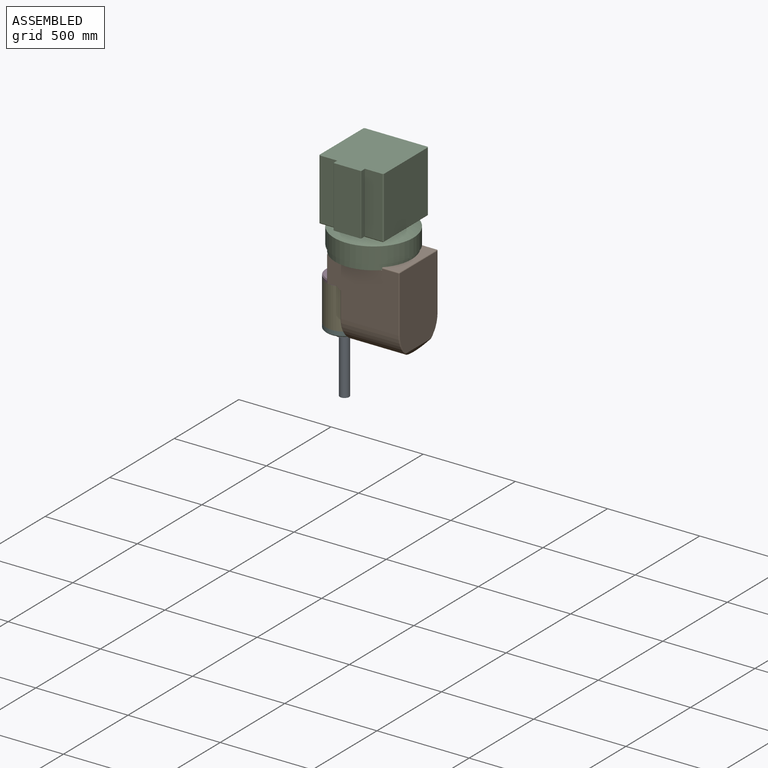
[diagram: assembled view]
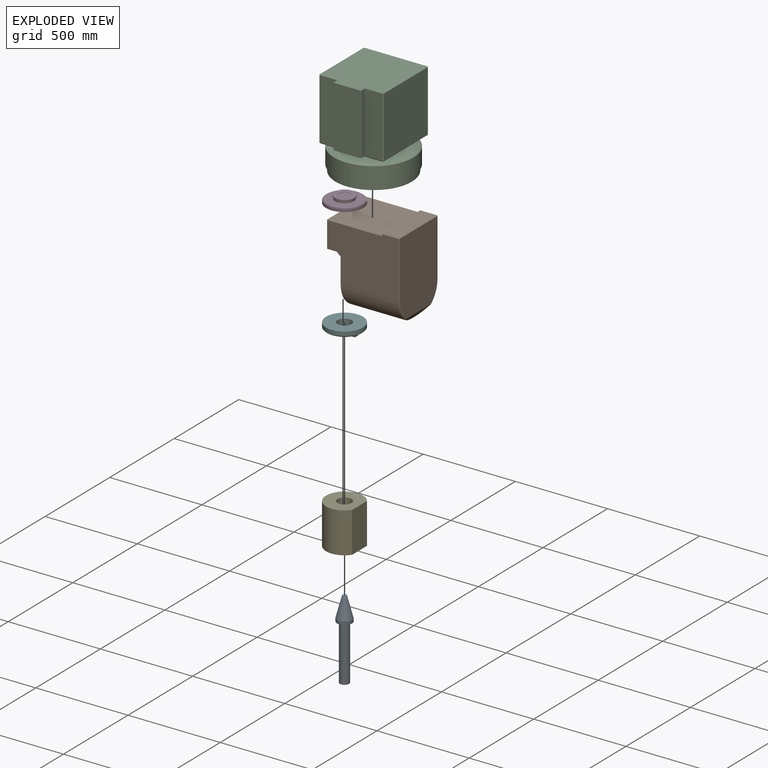
[diagram: exploded view]
GUIDED TOUR — MATED ASSEMBLY (Onshape document 7d806dec7221da7f1049d67c, AutoMate assembly 7d806dec7221da7f1049d67c_d2747893be9389fb7148f5d3_f6a2c4d3d82a6bc81b8f8425_default)

This assembly has 6 components, labeled P0..P5 below (a component is one placed occurrence of a part; the same part can appear more than once), held together by 5 mates. A mate is a constraint between two components; its type names the relative motion it leaves free:
  FASTENED — locks the two components together rigidly (no relative motion).
Axis/direction vectors are unit vectors and 'through' points are millimeter coordinates, both in the assembly's world frame.

MATES
  1. FASTENED "Fastened 2": P5 <-> P0, direction (0.000, 0.000, -1.000) through (117.07, 295.79, 282.63) mm
  2. FASTENED "Fastened 1": P5 <-> P4, direction (0.000, 0.000, 1.000) through (117.07, 295.79, 325.63) mm
  3. FASTENED "Fastened 5": P1 <-> P4, direction (-1.000, 0.000, 0.000) through (198.77, 295.79, 435.63) mm
  4. FASTENED "Fastened 4": P1 <-> P2, direction (0.000, 0.000, 1.000) through (275.23, 295.79, 717.82) mm
  5. FASTENED "Fastened 3": P4 <-> P3, direction (0.000, 0.000, 1.000) through (117.07, 295.79, 545.63) mm

ASSEMBLY ORDER
  1. P5 — the base component [order verified]
  2. P0 [order verified]
  3. P4 [order verified]
  4. P1 [order verified]
  5. P3 [order verified]
  6. P2 [order verified]
(P0 verified with a relaxed clearance tolerance: the source model stores slight part interference there.)
Order-tag legend:
  [order verified] — this step's position reverses a verified removal order: the component was checked to insert without passing through the ones already placed.

Of the 6 components, 5 carry the full construction recipe — the FeatureScript program that regenerates the part's solid from scratch; the rest are supplied as boundary geometry only.
Each toured component is shown spotlighted twice — in the assembled view, then in the exploded view, where a leader line traces a displaced component back to its assembled socket (saturated green if recipe-attached, orange if geometry-only; every other component desaturated gray) — followed by its recipe or geometry summary and the mates that hold it.
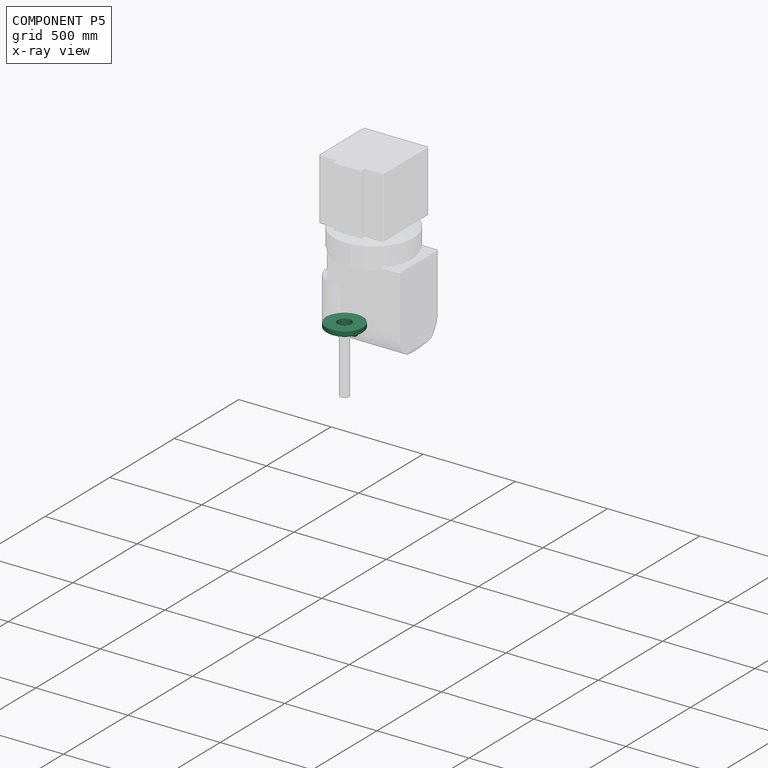
[diagram: component P5 — x-ray view]
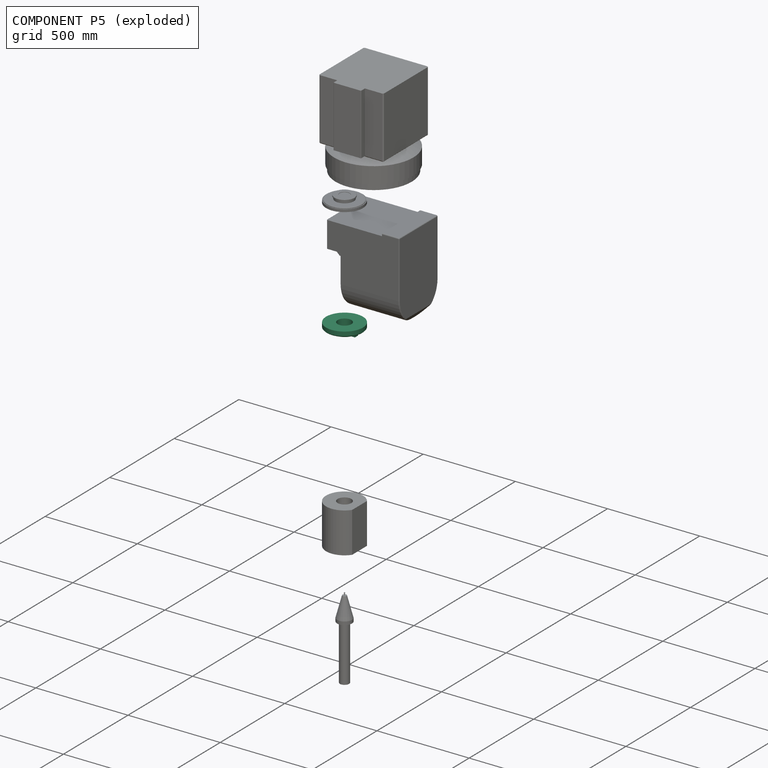
[diagram: component P5 — exploded]
COMPONENT P5 — recipe-attached (CADFS 00362085, mesh-verified: the recipe's output STEP matches this component's geometry to below the mesh-comparison resolution (tessellation chordal tolerance ~0.432 mm)).
Held by: FASTENED mate "Fastened 2" to P0; FASTENED mate "Fastened 1" to P4.
Construction recipe (FeatureScript — the CAD program that rebuilds this solid; sketch coordinates are in the units given by the * unit suffixes, e.g. mm):

FeatureScript 1511;
import(path : "onshape/std/geometry.fs", version : "1511.0");
import(path : "onshape/std/common.fs", version : "1511.0");
const mm = millimeter;
const VERTEX = EntityType.VERTEX;
const EDGE = EntityType.EDGE;
const FACE = EntityType.FACE;
const BODY = EntityType.BODY;
function v(x, y){return vector(x, y);}
function OD(order){return orderDisambiguation(order);}
function OSD(set){return originalSetDisambiguation(set);}
function TD(topology){return topologyDisambiguation(topology);}
function TDD(query){return trueDependencyDisambiguation(query);}
function sQuery(a, b, c) {return sketchEntityQuery(a, b, c);}

annotation { "Feature Type Name" : "Feature", "Feature Type Description" : "" }
export const myFeature = defineFeature(function(context is Context, id is Id, definition is map)
    precondition{}
    {
        {
            var Q0;
            Q0=qCreatedBy(makeId("Top.planeOp"),FACE);
            var sketch = newSketch(context, id + "F0", { "sketchPlane" : qUnion([Q0])});
            skCircle(sketch, "E0", {"center": v(0, 0) * mm, "radius": 100 * mm});
            skSolve(sketch);
        }
        {
            var Q0;
            Q0=makeQuery(id+"F0.imprint","IMPRINT",FACE,{"disambiguationData":[TD([[makeQuery(id+"F0.imprint","IMPRINT",EDGE,{"derivedFrom":sQuery(id+"F0.wireOp",EDGE,"E0")}),1.0]])]});
            extrude(context, id + "F1", {"entities" : qUnion([Q0]), "depth" : 28 * mm});
        }
        {
            var Q0;
            Q0=makeQuery(id+"F1.opExtrude","CAP_FACE",FACE,{"disambiguationData":[OSD([sQuery(id+"F0.wireOp",EDGE,"E0")])],"isStart":true});
            var sketch = newSketch(context, id + "F2", { "sketchPlane" : qUnion([Q0])});
            skCircle(sketch, "E1", {"center": v(0, 0) * mm, "radius": 65 * mm});
            skCircle(sketch, "E2", {"center": v(0, 0) * mm, "radius": 37.5 * mm});
            skPoint(sketch, "E3.middle", {"position": v(-47.86, 0) * mm});
            skPoint(sketch, "E4.middle", {"position": v(50, 0) * mm});
            skPoint(sketch, "E3.right.end.orphan", {"position": v(-60.36, 12.5) * mm});
            skPoint(sketch, "E3.bottom.end.orphan", {"position": v(-60.36, -12.5) * mm});
            skPoint(sketch, "E3.left.end.orphan", {"position": v(-35.36, 12.5) * mm});
            skPoint(sketch, "E3.left.start.orphan", {"position": v(-35.36, -12.5) * mm});
            skPoint(sketch, "E4.bottom.end.orphan", {"position": v(36.21, -12.5) * mm});
            skPoint(sketch, "E4.left.start.orphan", {"position": v(63.79, -12.5) * mm});
            skPoint(sketch, "E4.top.end.orphan", {"position": v(36.21, 12.5) * mm});
            skPoint(sketch, "E4.top.start.orphan", {"position": v(63.79, 12.5) * mm});
            skSolve(sketch);
        }
        {
            var Q0;
            Q0=makeQuery(id+"F2.imprint","IMPRINT",FACE,{"disambiguationData":[TD([[makeQuery(id+"F2.imprint","IMPRINT",EDGE,{"derivedFrom":sQuery(id+"F2.wireOp",EDGE,"E1")}),1.0]])]});
            extrude(context, id + "F3", {"entities" : qUnion([Q0]), "operationType" : NewBodyOperationType.ADD, "depth" : 15 * mm});
        }
        {
            var Q0;
            Q0=makeQuery(id+"F3.opExtrude","CAP_FACE",FACE,{"disambiguationData":[OSD([sQuery(id+"F2.wireOp",EDGE,"E1"),sQuery(id+"F2.wireOp",EDGE,"E2")])],"isStart":false});
            var sketch = newSketch(context, id + "F4", { "sketchPlane" : qUnion([Q0])});
            skLineSegment(sketch, "E5.bottom", {"start": v(65, -12.5) * mm, "end": v(40, -12.5) * mm});
            skLineSegment(sketch, "E5.top", {"start": v(65, 12.5) * mm, "end": v(40, 12.5) * mm});
            skLineSegment(sketch, "E5.left", {"start": v(65, -12.5) * mm, "end": v(65, 12.5) * mm});
            skLineSegment(sketch, "E5.right", {"start": v(40, -12.5) * mm, "end": v(40, 12.5) * mm});
            skPoint(sketch, "E5.middle", {"position": v(52.5, 0) * mm});
            skLineSegment(sketch, "E6.bottom", {"start": v(-40, -12.5) * mm, "end": v(-65, -12.5) * mm});
            skLineSegment(sketch, "E6.top", {"start": v(-40, 12.5) * mm, "end": v(-65, 12.5) * mm});
            skLineSegment(sketch, "E6.left", {"start": v(-40, -12.5) * mm, "end": v(-40, 12.5) * mm});
            skLineSegment(sketch, "E6.right", {"start": v(-65, -12.5) * mm, "end": v(-65, 12.5) * mm});
            skPoint(sketch, "E6.middle", {"position": v(-52.5, 0) * mm});
            skSolve(sketch);
        }
        {
            var Q0;
            {var subQ0=sQuery(id+"F4.wireOp",EDGE,"E6.left");Q0=makeQuery(id+"F4.imprint","IMPRINT",FACE,{"disambiguationData":[TD([[makeQuery(id+"F4.imprint","IMPRINT",EDGE,{"derivedFrom":subQ0}),1.0]])]});}
            var Q1;
            {var subQ4=sQuery(id+"F4.wireOp",EDGE,"E5.right");Q1=makeQuery(id+"F4.imprint","IMPRINT",FACE,{"disambiguationData":[TD([[makeQuery(id+"F4.imprint","IMPRINT",EDGE,{"derivedFrom":subQ4}),-1.0]])]});}
            var Q2;
            {var subQ0=sQuery(id+"F4.wireOp",EDGE,"E5.left");var subQ1=sQuery(id+"F4.wireOp",EDGE,"E5.top");var subQ2=makeQuery(id+"F4.imprint","INTERSECT",VERTEX,{"derivedFrom":[subQ1,subQ0]});Q2=makeQuery(id+"F4.imprint","IMPRINT",FACE,{"disambiguationData":[TD([[makeQuery(id+"F4.imprint","IMPRINT",EDGE,{"disambiguationData":[TD([[subQ2,-1.0]])],"derivedFrom":subQ1}),1.0]])]});}
            var Q3;
            {var subQ0=sQuery(id+"F4.wireOp",EDGE,"E5.left");var subQ1=sQuery(id+"F4.wireOp",EDGE,"E5.bottom");var subQ2=makeQuery(id+"F4.imprint","INTERSECT",VERTEX,{"derivedFrom":[subQ1,subQ0]});Q3=makeQuery(id+"F4.imprint","IMPRINT",FACE,{"disambiguationData":[TD([[makeQuery(id+"F4.imprint","IMPRINT",EDGE,{"disambiguationData":[TD([[subQ2,-1.0]])],"derivedFrom":subQ1}),-1.0]])]});}
            var Q4;
            {var subQ0=sQuery(id+"F4.wireOp",EDGE,"E6.right");var subQ1=sQuery(id+"F4.wireOp",EDGE,"E6.top");var subQ2=makeQuery(id+"F4.imprint","INTERSECT",VERTEX,{"derivedFrom":[subQ1,subQ0]});Q4=makeQuery(id+"F4.imprint","IMPRINT",FACE,{"disambiguationData":[TD([[makeQuery(id+"F4.imprint","IMPRINT",EDGE,{"disambiguationData":[TD([[subQ2,1.0]])],"derivedFrom":subQ1}),1.0]])]});}
            var Q5;
            {var subQ0=sQuery(id+"F4.wireOp",EDGE,"E6.right");var subQ1=sQuery(id+"F4.wireOp",EDGE,"E6.bottom");var subQ2=makeQuery(id+"F4.imprint","INTERSECT",VERTEX,{"derivedFrom":[subQ1,subQ0]});Q5=makeQuery(id+"F4.imprint","IMPRINT",FACE,{"disambiguationData":[TD([[makeQuery(id+"F4.imprint","IMPRINT",EDGE,{"disambiguationData":[TD([[subQ2,1.0]])],"derivedFrom":subQ1}),-1.0]])]});}
            extrude(context, id + "F5", {"entities" : qUnion([Q0, Q1, Q2, Q3, Q4, Q5]), "operationType" : NewBodyOperationType.ADD, "depth" : 10 * mm});
        }
        {
            var Q0;
            Q0=makeQuery(id+"F5.opExtrude","CAP_FACE",FACE,{"disambiguationData":[OSD([sQuery(id+"F4.wireOp",EDGE,"E6.bottom"),sQuery(id+"F4.wireOp",EDGE,"E6.top"),sQuery(id+"F4.wireOp",EDGE,"E6.left"),sQuery(id+"F4.wireOp",EDGE,"E6.right")])],"isStart":false});
            var sketch = newSketch(context, id + "F6", { "sketchPlane" : qUnion([Q0])});
            skCircle(sketch, "E7", {"center": v(-52.5, 0) * mm, "radius": 6 * mm});
            skCircle(sketch, "E8", {"center": v(52.5, 0) * mm, "radius": 6 * mm});
            skSolve(sketch);
        }
        {
            var Q0;
            Q0=makeQuery(id+"F6.imprint","IMPRINT",FACE,{"disambiguationData":[TD([[makeQuery(id+"F6.imprint","IMPRINT",EDGE,{"derivedFrom":sQuery(id+"F6.wireOp",EDGE,"E8")}),1.0]])]});
            var Q1;
            Q1=makeQuery(id+"F6.imprint","IMPRINT",FACE,{"disambiguationData":[TD([[makeQuery(id+"F6.imprint","IMPRINT",EDGE,{"derivedFrom":sQuery(id+"F6.wireOp",EDGE,"E7")}),1.0]])]});
            extrude(context, id + "F7", {"entities" : qUnion([Q0, Q1]), "operationType" : NewBodyOperationType.REMOVE, "oppositeDirection" : true, "depth" : 2 * mm});
        }
        {
            var Q0;
            Q0=makeQuery(id+"F3.boolean.opBoolean","SPLIT",FACE,{"disambiguationData":[TD([makeQuery(id+"F3.opExtrude","SWEPT_FACE",FACE,{"disambiguationData":[OSD([sQuery(id+"F2.wireOp",EDGE,"E2")])]})])],"derivedFrom":makeQuery(id+"F1.opExtrude","CAP_FACE",FACE,{"disambiguationData":[OSD([sQuery(id+"F0.wireOp",EDGE,"E0")])],"isStart":true})});
            extrude(context, id + "F8", {"entities" : qUnion([Q0]), "operationType" : NewBodyOperationType.REMOVE, "oppositeDirection" : true, "depth" : 50 * mm});
        }
        {
            var Q0;
            Q0=makeQuery(id+"F1.opExtrude","CAP_EDGE",EDGE,{"disambiguationData":[OSD([sQuery(id+"F0.wireOp",EDGE,"E0")])],"isStart":true});
            chamfer(context, id + "F9", {"entities" : qUnion([Q0]), "width" : 5 * mm, "tangentPropagation" : true});
        }
    });
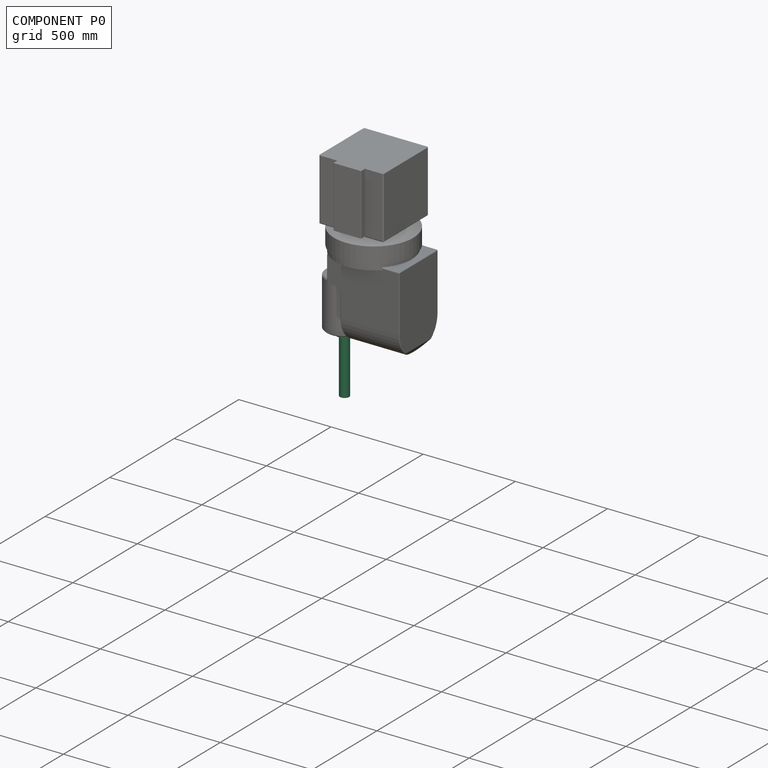
[diagram: component P0 — assembled]
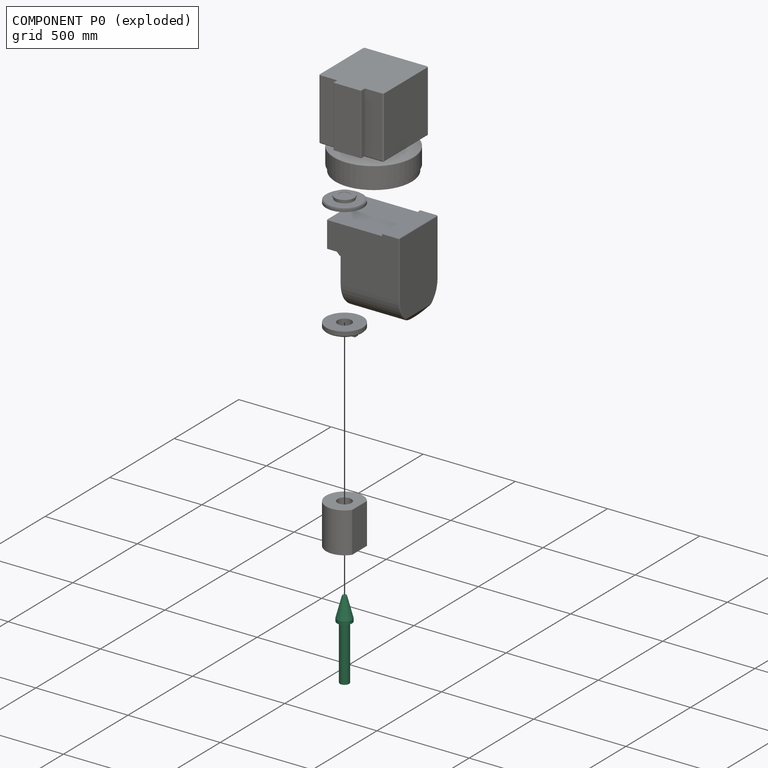
[diagram: component P0 — exploded]
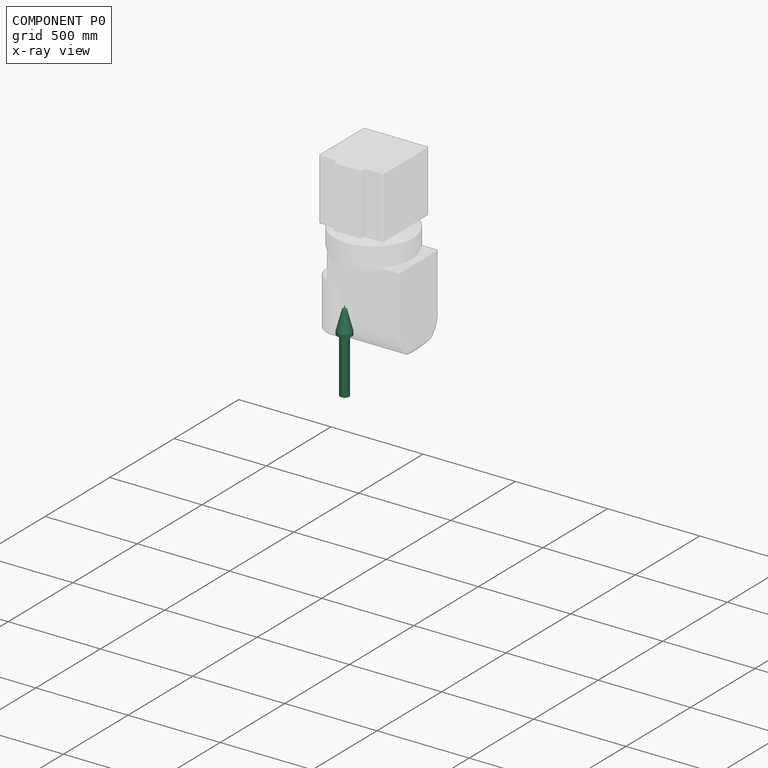
[diagram: component P0 — x-ray view]
COMPONENT P0 — recipe-attached (CADFS 00362087, mesh-verified: the recipe's output STEP matches this component's geometry to below the mesh-comparison resolution (tessellation chordal tolerance ~0.685 mm)).
Held by: FASTENED mate "Fastened 2" to P5.
Construction recipe (FeatureScript — the CAD program that rebuilds this solid; sketch coordinates are in the units given by the * unit suffixes, e.g. mm):

FeatureScript 1511;
import(path : "onshape/std/geometry.fs", version : "1511.0");
import(path : "onshape/std/common.fs", version : "1511.0");
const mm = millimeter;
const VERTEX = EntityType.VERTEX;
const EDGE = EntityType.EDGE;
const FACE = EntityType.FACE;
const BODY = EntityType.BODY;
function v(x, y){return vector(x, y);}
function OD(order){return orderDisambiguation(order);}
function OSD(set){return originalSetDisambiguation(set);}
function TD(topology){return topologyDisambiguation(topology);}
function TDD(query){return trueDependencyDisambiguation(query);}
function sQuery(a, b, c) {return sketchEntityQuery(a, b, c);}

annotation { "Feature Type Name" : "Feature", "Feature Type Description" : "" }
export const myFeature = defineFeature(function(context is Context, id is Id, definition is map)
    precondition{}
    {
        {
            var Q0;
            Q0=qCreatedBy(makeId("Front.planeOp"),FACE);
            var sketch = newSketch(context, id + "F0", { "sketchPlane" : qUnion([Q0])});
            skLineSegment(sketch, "E0", {"start": v(0, -215.17) * mm, "end": v(25, -215.17) * mm});
            skLineSegment(sketch, "E1", {"start": v(25, -215.17) * mm, "end": v(25, 84.83) * mm});
            skLineSegment(sketch, "E2", {"start": v(25, 84.83) * mm, "end": v(40.34, 84.83) * mm});
            skLineSegment(sketch, "E3", {"start": v(0, 212.9) * mm, "end": v(0, -215.17) * mm});
            skPoint(sketch, "E4.orphan", {"position": v(2.47, 236.47) * mm});
            skPoint(sketch, "E5.end.orphan", {"position": v(4.76, 236.47) * mm});
            skPoint(sketch, "E6.end.orphan", {"position": v(7.06, 236.47) * mm});
            skPoint(sketch, "E7.end.orphan", {"position": v(4.76, 212.9) * mm});
            skLineSegment(sketch, "E8", {"start": v(1.81, 212.9) * mm, "end": v(11.1, 212.9) * mm});
            skLineSegment(sketch, "E9", {"start": v(40.34, 102.43) * mm, "end": v(11.1, 212.9) * mm});
            skLineSegment(sketch, "E10", {"start": v(0, 227.17) * mm, "end": v(0, 212.9) * mm});
            skLineSegment(sketch, "E11", {"start": v(0, 227.17) * mm, "end": v(2.26, 227.17) * mm});
            skLineSegment(sketch, "E12", {"start": v(2.26, 227.17) * mm, "end": v(3.44, 224.95) * mm});
            skLineSegment(sketch, "E13", {"start": v(3.44, 224.95) * mm, "end": v(3.44, 222.87) * mm});
            skLineSegment(sketch, "E14", {"start": v(3.44, 222.87) * mm, "end": v(1.81, 222.87) * mm});
            skLineSegment(sketch, "E15", {"start": v(1.81, 222.87) * mm, "end": v(1.81, 212.9) * mm});
            skLineSegment(sketch, "E16", {"start": v(40.34, 84.83) * mm, "end": v(40.34, 102.43) * mm});
            skSolve(sketch);
        }
        {
            var Q0;
            Q0=makeQuery(id+"F0.imprint","IMPRINT",FACE,{"disambiguationData":[TD([[makeQuery(id+"F0.imprint","IMPRINT",EDGE,{"derivedFrom":sQuery(id+"F0.wireOp",EDGE,"E0")}),1.0]])]});
            var Q1;
            Q1=sQuery(id+"F0.wireOp",EDGE,"E3");
            revolve(context, id + "F1", {"entities" : qUnion([Q0]), "axis" : qUnion([Q1]), "revolveType" : RevolveType.FULL});
        }
    });
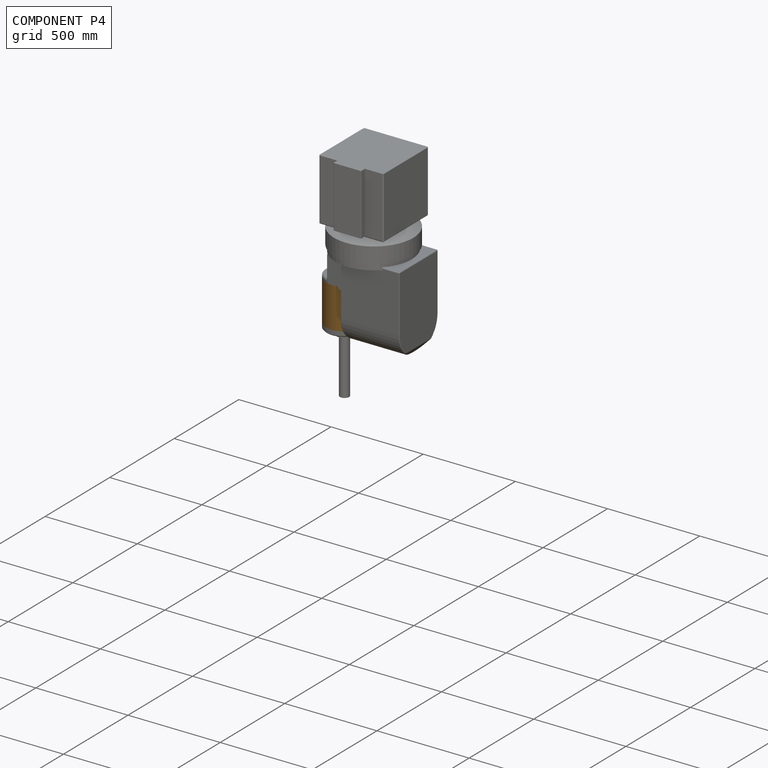
[diagram: component P4 — assembled]
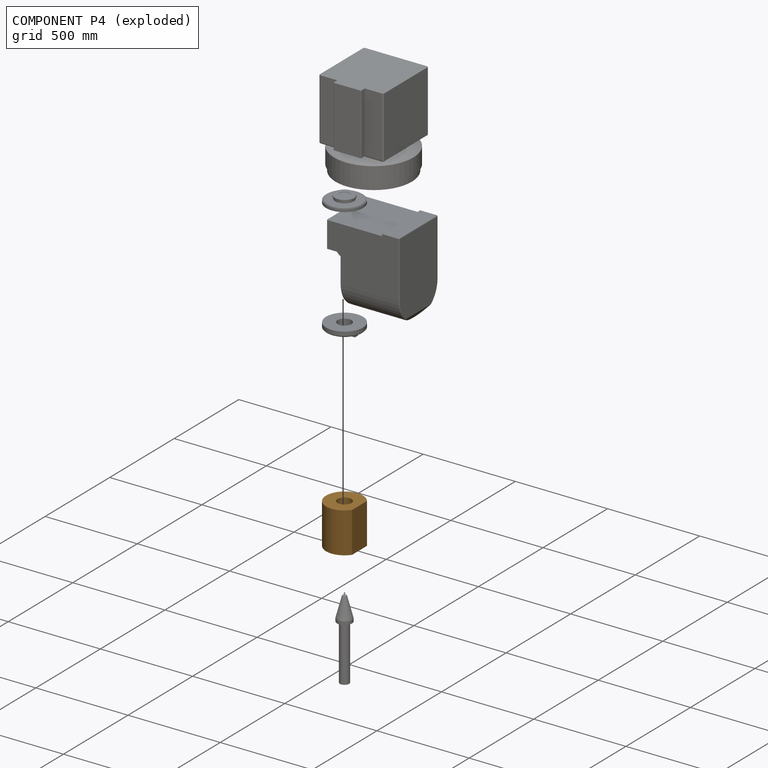
[diagram: component P4 — exploded]
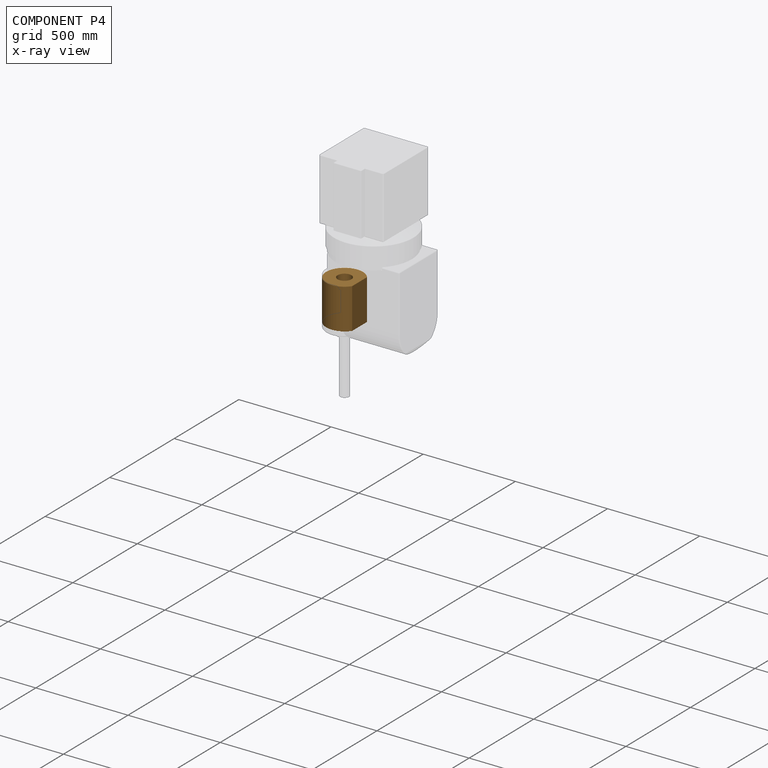
[diagram: component P4 — x-ray view]
COMPONENT P4 — geometry summary (no construction recipe available for this part):
  bounding box: 220.0 x 200.0 x 181.7 mm
  B-rep topology: 1 solid, 5 faces, 18 edges
  volume: 5623963 mm^3 (70% of its bounding box)
  symmetry: 2-fold rotationally symmetric about the x axis; mirror-symmetric across its y mid-plane, z mid-plane
Held by: FASTENED mate "Fastened 1" to P5; FASTENED mate "Fastened 5" to P1; FASTENED mate "Fastened 3" to P3.
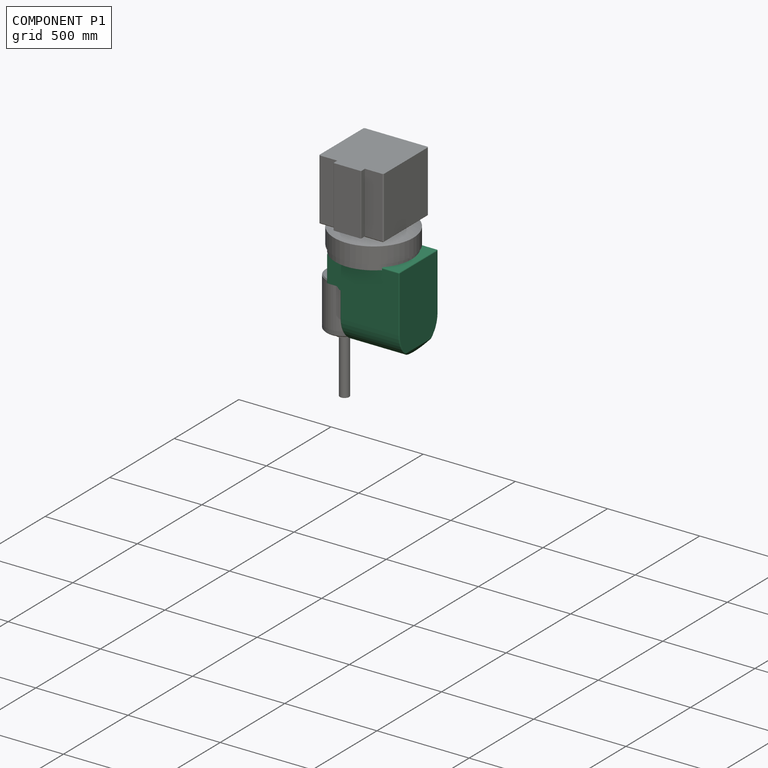
[diagram: component P1 — assembled]
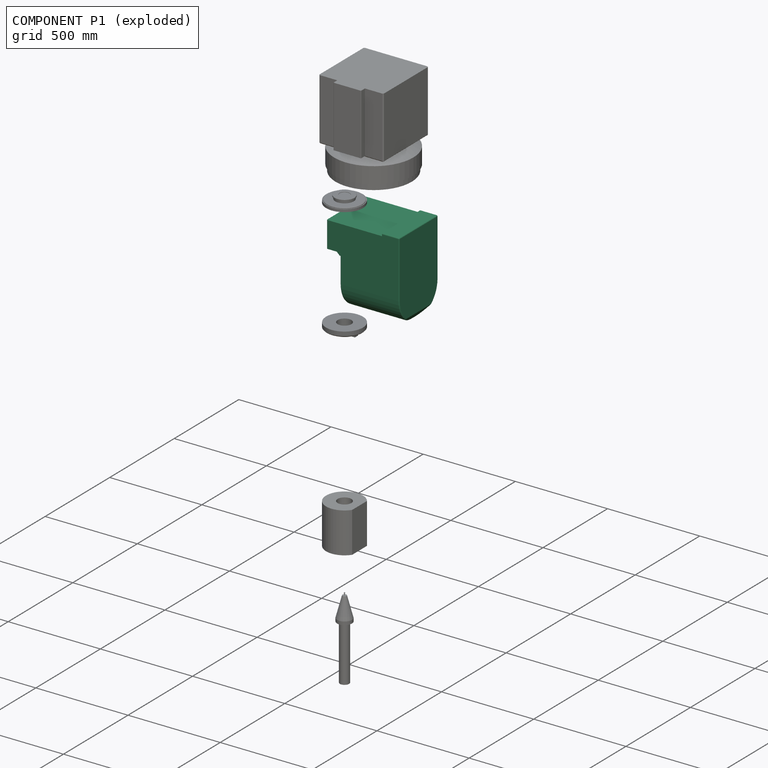
[diagram: component P1 — exploded]
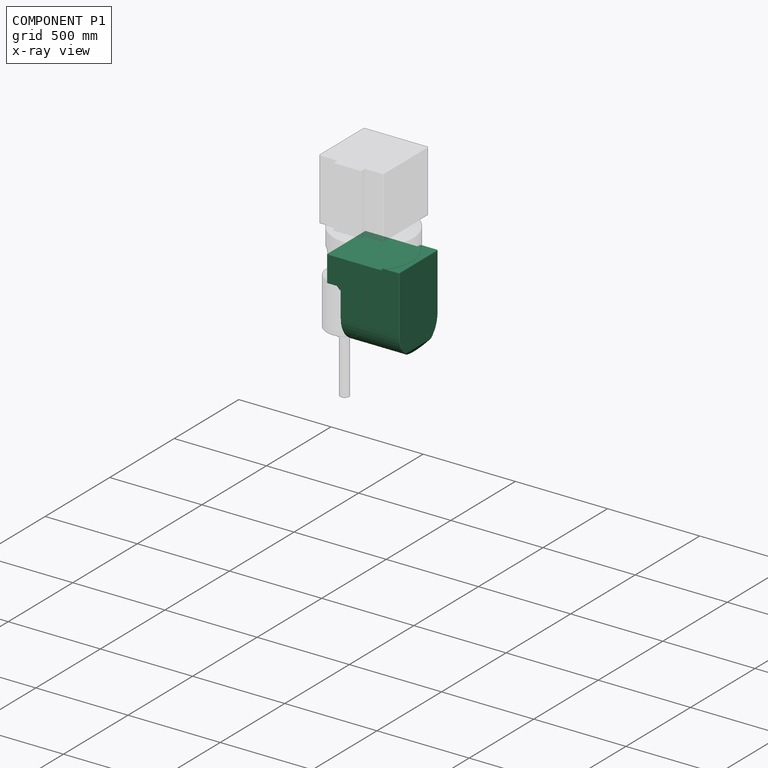
[diagram: component P1 — x-ray view]
COMPONENT P1 — recipe-attached (CADFS 00362090, mesh-verified: the recipe's output STEP matches this component's geometry to below the mesh-comparison resolution (tessellation chordal tolerance ~1 mm)).
Held by: FASTENED mate "Fastened 5" to P4; FASTENED mate "Fastened 4" to P2.
Construction recipe (FeatureScript — the CAD program that rebuilds this solid; sketch coordinates are in the units given by the * unit suffixes, e.g. mm):

FeatureScript 1511;
import(path : "onshape/std/geometry.fs", version : "1511.0");
import(path : "onshape/std/common.fs", version : "1511.0");
const mm = millimeter;
const VERTEX = EntityType.VERTEX;
const EDGE = EntityType.EDGE;
const FACE = EntityType.FACE;
const BODY = EntityType.BODY;
function v(x, y){return vector(x, y);}
function OD(order){return orderDisambiguation(order);}
function OSD(set){return originalSetDisambiguation(set);}
function TD(topology){return topologyDisambiguation(topology);}
function TDD(query){return trueDependencyDisambiguation(query);}
function sQuery(a, b, c) {return sketchEntityQuery(a, b, c);}

annotation { "Feature Type Name" : "Feature", "Feature Type Description" : "" }
export const myFeature = defineFeature(function(context is Context, id is Id, definition is map)
    precondition{}
    {
        {
            var Q0;
            Q0=qCreatedBy(makeId("Front.planeOp"),FACE);
            var sketch = newSketch(context, id + "F0", { "sketchPlane" : qUnion([Q0])});
            skLineSegment(sketch, "E0", {"start": v(-209.31, 94.65) * mm, "end": v(90.62, 94.65) * mm});
            skLineSegment(sketch, "E1", {"start": v(90.62, 94.65) * mm, "end": v(90.62, 74.54) * mm});
            skLineSegment(sketch, "E2", {"start": v(90.62, 74.54) * mm, "end": v(99.04, 67) * mm});
            skLineSegment(sketch, "E3", {"start": v(99.04, 67) * mm, "end": v(125.16, 67) * mm});
            skLineSegment(sketch, "E4", {"start": v(125.16, 67) * mm, "end": v(125.16, -341.57) * mm});
            skLineSegment(sketch, "E5", {"start": v(90.62, 94.65) * mm, "end": v(90.62, 108.43) * mm});
            skLineSegment(sketch, "E6", {"start": v(90.62, 108.43) * mm, "end": v(184.21, 108.43) * mm});
            skLineSegment(sketch, "E7", {"start": v(184.21, 108.43) * mm, "end": v(184.21, -306.92) * mm});
            skLineSegment(sketch, "E8", {"start": v(-135.79, -341.57) * mm, "end": v(234.39, -341.57) * mm});
            skLineSegment(sketch, "E9", {"start": v(159.12, -341.57) * mm, "end": v(184.21, -306.92) * mm});
            skLineSegment(sketch, "E10", {"start": v(-135.79, -341.57) * mm, "end": v(-135.79, -61.83) * mm});
            skLineSegment(sketch, "E11", {"start": v(-135.79, -61.83) * mm, "end": v(-139.43, -61.83) * mm});
            skLineSegment(sketch, "E12", {"start": v(-154.47, -46.76) * mm, "end": v(-139.43, -61.83) * mm});
            skPoint(sketch, "E12.startSnap0", {"position": v(-154.47, -61.83) * mm});
            skLineSegment(sketch, "E13", {"start": v(-154.47, -46.76) * mm, "end": v(-209.31, -46.76) * mm});
            skLineSegment(sketch, "E14", {"start": v(-209.31, 94.65) * mm, "end": v(-209.31, -46.76) * mm});
            skPoint(sketch, "E15.end.orphan", {"position": v(-173.15, 258.04) * mm});
            skPoint(sketch, "E16.orphan", {"position": v(-209.31, 108.43) * mm});
            skPoint(sketch, "E17.orphan", {"position": v(90.62, 132.04) * mm});
            skPoint(sketch, "E18.orphan", {"position": v(-173.15, -61.83) * mm});
            skSolve(sketch);
        }
        {
            var Q0;
            Q0=makeQuery(id+"F0.imprint","IMPRINT",FACE,{"disambiguationData":[TD([[makeQuery(id+"F0.imprint","IMPRINT",EDGE,{"derivedFrom":sQuery(id+"F0.wireOp",EDGE,"E0")}),-1.0]])]});
            var Q1;
            Q1=makeQuery(id+"F0.imprint","IMPRINT",FACE,{"disambiguationData":[TD([[makeQuery(id+"F0.imprint","IMPRINT",EDGE,{"derivedFrom":sQuery(id+"F0.wireOp",EDGE,"E1")}),1.0]])]});
            extrude(context, id + "F1", {"entities" : qUnion([Q0, Q1]), "depth" : 300 * mm});
        }
        {
            var Q0;
            Q0=makeQuery(id+"F1.opExtrude","SWEPT_EDGE",EDGE,{"disambiguationData":[OSD([sQuery(id+"F0.wireOp",EDGE,"E6"),sQuery(id+"F0.wireOp",EDGE,"E7")])]});
            var Q1;
            Q1=makeQuery(id+"F1.opExtrude","CAP_EDGE",EDGE,{"disambiguationData":[OSD([sQuery(id+"F0.wireOp",EDGE,"E7")])],"isStart":false});
            var Q2;
            Q2=makeQuery(id+"F1.opExtrude","CAP_EDGE",EDGE,{"disambiguationData":[OSD([sQuery(id+"F0.wireOp",EDGE,"E7")])],"isStart":true});
            var Q3;
            Q3=makeQuery(id+"F1.opExtrude","CAP_EDGE",EDGE,{"disambiguationData":[OSD([sQuery(id+"F0.wireOp",EDGE,"E14")])],"isStart":false});
            var Q4;
            Q4=makeQuery(id+"F1.opExtrude","CAP_EDGE",EDGE,{"disambiguationData":[OSD([sQuery(id+"F0.wireOp",EDGE,"E14")])],"isStart":true});
            fillet(context, id + "F2", {"entities" : qUnion([Q0, Q1, Q2, Q3, Q4]), "radius" : 5 * mm, "tangentPropagation" : true, "allowEdgeOverflow" : false});
        }
        {
            var Q0;
            Q0=makeQuery(id+"F1.opExtrude","CAP_EDGE",EDGE,{"disambiguationData":[OSD([sQuery(id+"F0.wireOp",EDGE,"E8")])],"isStart":false});
            var Q1;
            Q1=makeQuery(id+"F1.opExtrude","CAP_EDGE",EDGE,{"disambiguationData":[OSD([sQuery(id+"F0.wireOp",EDGE,"E8")])],"isStart":true});
            fillet(context, id + "F3", {"entities" : qUnion([Q0, Q1]), "radius" : 140 * mm, "tangentPropagation" : true, "allowEdgeOverflow" : false});
        }
        {
            var Q0;
            Q0=makeQuery(id+"F3.opFillet","BLEND_EDGE",EDGE,{"blendedFrom":[makeQuery(id+"F1.opExtrude","CAP_EDGE",EDGE,{"disambiguationData":[OSD([sQuery(id+"F0.wireOp",EDGE,"E8")])],"isStart":false}),makeQuery(id+"F1.opExtrude","SWEPT_FACE",FACE,{"disambiguationData":[OSD([sQuery(id+"F0.wireOp",EDGE,"E7")])]})],"blendedInto":[makeQuery(id+"F1.opExtrude","SWEPT_FACE",FACE,{"disambiguationData":[OSD([sQuery(id+"F0.wireOp",EDGE,"E7")])]})]});
            var Q1;
            Q1=makeQuery(id+"F3.opFillet","BLEND_EDGE",EDGE,{"blendedFrom":[makeQuery(id+"F1.opExtrude","CAP_EDGE",EDGE,{"disambiguationData":[OSD([sQuery(id+"F0.wireOp",EDGE,"E8")])],"isStart":false}),makeQuery(id+"F1.opExtrude","SWEPT_FACE",FACE,{"disambiguationData":[OSD([sQuery(id+"F0.wireOp",EDGE,"E9")])]})],"blendedInto":[makeQuery(id+"F1.opExtrude","SWEPT_FACE",FACE,{"disambiguationData":[OSD([sQuery(id+"F0.wireOp",EDGE,"E9")])]})]});
            var Q2;
            Q2=makeQuery(id+"F3.opFillet","BLEND_EDGE",EDGE,{"blendedFrom":[makeQuery(id+"F1.opExtrude","CAP_EDGE",EDGE,{"disambiguationData":[OSD([sQuery(id+"F0.wireOp",EDGE,"E8")])],"isStart":true}),makeQuery(id+"F1.opExtrude","SWEPT_FACE",FACE,{"disambiguationData":[OSD([sQuery(id+"F0.wireOp",EDGE,"E9")])]})],"blendedInto":[makeQuery(id+"F1.opExtrude","SWEPT_FACE",FACE,{"disambiguationData":[OSD([sQuery(id+"F0.wireOp",EDGE,"E9")])]})]});
            var Q3;
            Q3=makeQuery(id+"F1.opExtrude","SWEPT_EDGE",EDGE,{"disambiguationData":[OSD([sQuery(id+"F0.wireOp",EDGE,"E8"),sQuery(id+"F0.wireOp",EDGE,"E9")])]});
            var Q4;
            Q4=makeQuery(id+"F3.opFillet","BLEND_EDGE",EDGE,{"blendedFrom":[makeQuery(id+"F1.opExtrude","CAP_EDGE",EDGE,{"disambiguationData":[OSD([sQuery(id+"F0.wireOp",EDGE,"E8")])],"isStart":true}),makeQuery(id+"F1.opExtrude","SWEPT_FACE",FACE,{"disambiguationData":[OSD([sQuery(id+"F0.wireOp",EDGE,"E7")])]})],"blendedInto":[makeQuery(id+"F1.opExtrude","SWEPT_FACE",FACE,{"disambiguationData":[OSD([sQuery(id+"F0.wireOp",EDGE,"E7")])]})]});
            var Q5;
            Q5=makeQuery(id+"F3.opFillet","BLEND_EDGE",EDGE,{"blendedFrom":[makeQuery(id+"F1.opExtrude","CAP_EDGE",EDGE,{"disambiguationData":[OSD([sQuery(id+"F0.wireOp",EDGE,"E8")])],"isStart":true}),makeQuery(id+"F1.opExtrude","SWEPT_FACE",FACE,{"disambiguationData":[OSD([sQuery(id+"F0.wireOp",EDGE,"E10")])]})],"blendedInto":[makeQuery(id+"F1.opExtrude","SWEPT_FACE",FACE,{"disambiguationData":[OSD([sQuery(id+"F0.wireOp",EDGE,"E10")])]})]});
            var Q6;
            Q6=makeQuery(id+"F3.opFillet","BLEND_EDGE",EDGE,{"blendedFrom":[makeQuery(id+"F1.opExtrude","CAP_EDGE",EDGE,{"disambiguationData":[OSD([sQuery(id+"F0.wireOp",EDGE,"E8")])],"isStart":false}),makeQuery(id+"F1.opExtrude","SWEPT_FACE",FACE,{"disambiguationData":[OSD([sQuery(id+"F0.wireOp",EDGE,"E10")])]})],"blendedInto":[makeQuery(id+"F1.opExtrude","SWEPT_FACE",FACE,{"disambiguationData":[OSD([sQuery(id+"F0.wireOp",EDGE,"E10")])]})]});
            var Q7;
            Q7=makeQuery(id+"F1.opExtrude","SWEPT_EDGE",EDGE,{"disambiguationData":[OSD([sQuery(id+"F0.wireOp",EDGE,"E8"),sQuery(id+"F0.wireOp",EDGE,"E10")])]});
            fillet(context, id + "F4", {"entities" : qUnion([Q0, Q1, Q2, Q3, Q4, Q5, Q6, Q7]), "radius" : 5 * mm, "tangentPropagation" : true, "allowEdgeOverflow" : false});
        }
        {
            var Q0;
            Q0=makeQuery(id+"F1.opExtrude","CAP_EDGE",EDGE,{"disambiguationData":[OSD([sQuery(id+"F0.wireOp",EDGE,"E6")])],"isStart":false});
            var Q1;
            Q1=makeQuery(id+"F1.opExtrude","CAP_EDGE",EDGE,{"disambiguationData":[OSD([sQuery(id+"F0.wireOp",EDGE,"E6")])],"isStart":true});
            fillet(context, id + "F5", {"entities" : qUnion([Q0, Q1]), "radius" : 5 * mm, "tangentPropagation" : true, "allowEdgeOverflow" : false});
        }
        {
            var Q0;
            Q0=makeQuery(id+"F1.opExtrude","SWEPT_FACE",FACE,{"disambiguationData":[OSD([sQuery(id+"F0.wireOp",EDGE,"E14")])]});
            var sketch = newSketch(context, id + "F6", { "sketchPlane" : qUnion([Q0])});
            skArc(sketch, "E19", {"start": v(295, -42.72) * mm, "mid": v(150, 13.2) * mm, "end": v(5, -42.72) * mm});
            skPoint(sketch, "E19.centerSnap0", {"position": v(150, -46.76) * mm});
            skLineSegment(sketch, "E20", {"start": v(5, -46.76) * mm, "end": v(5, -61.87) * mm});
            skLineSegment(sketch, "E21", {"start": v(5, -61.87) * mm, "end": v(295, -61.87) * mm});
            skLineSegment(sketch, "E22", {"start": v(295, -61.87) * mm, "end": v(295, -46.76) * mm});
            skLineSegment(sketch, "E23", {"start": v(295, -46.76) * mm, "end": v(295, -42.72) * mm});
            skLineSegment(sketch, "E24", {"start": v(5, -46.76) * mm, "end": v(5, -42.72) * mm});
            skSolve(sketch);
        }
        {
            var Q0;
            Q0=makeQuery(id+"F6.imprint","IMPRINT",FACE,{"disambiguationData":[TD([[makeQuery(id+"F6.imprint","IMPRINT",EDGE,{"derivedFrom":sQuery(id+"F6.wireOp",EDGE,"E19")}),1.0]])]});
            var Q1;
            Q1=makeQuery(id+"F6.imprint","IMPRINT",FACE,{"disambiguationData":[TD([[makeQuery(id+"F6.imprint","IMPRINT",EDGE,{"derivedFrom":sQuery(id+"F6.wireOp",EDGE,"E20")}),1.0]])]});
            extrude(context, id + "F7", {"entities" : qUnion([Q0, Q1]), "operationType" : NewBodyOperationType.REMOVE, "oppositeDirection" : true, "depth" : 75 * mm});
        }
    });
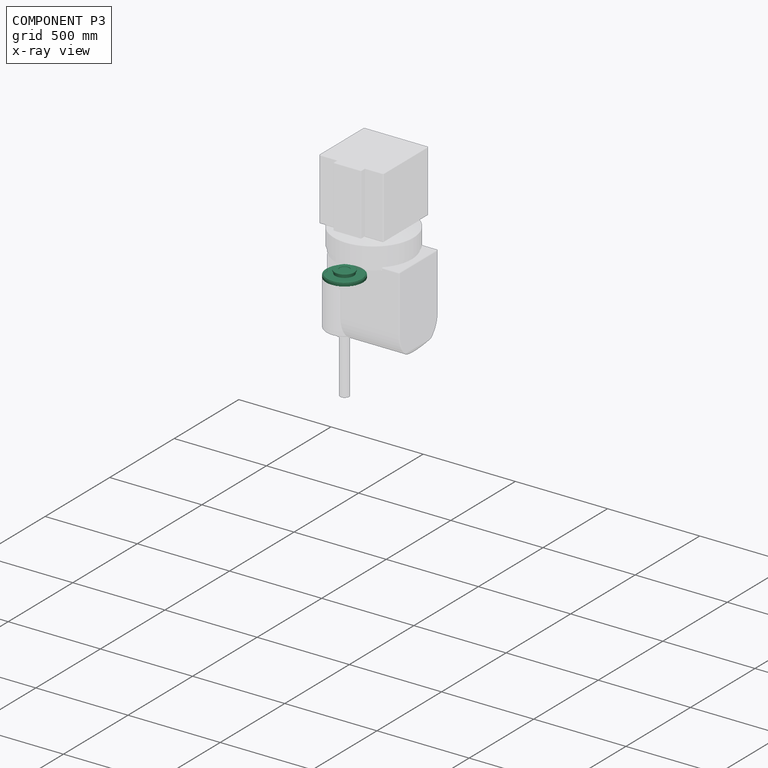
[diagram: component P3 — x-ray view]
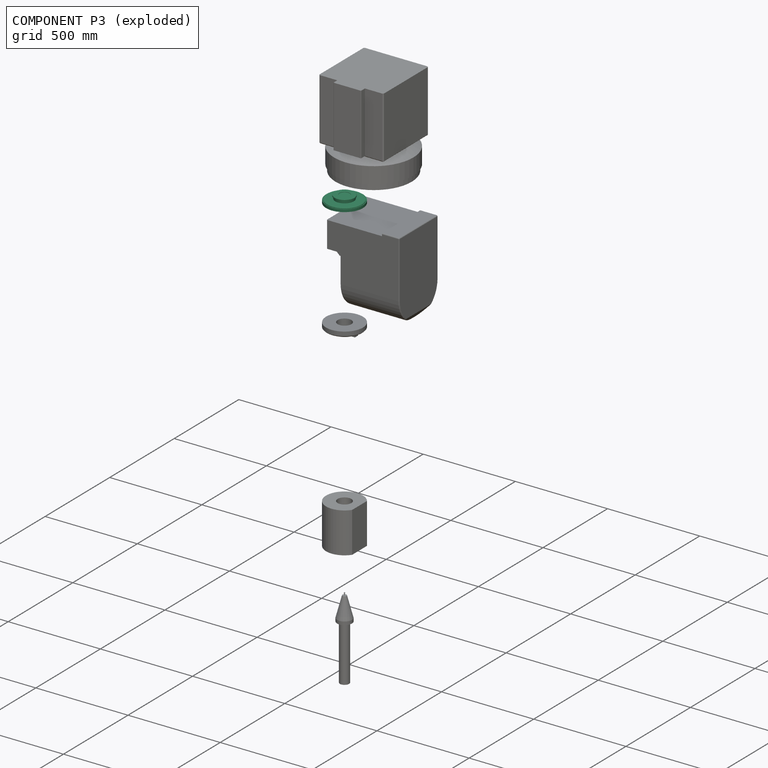
[diagram: component P3 — exploded]
COMPONENT P3 — recipe-attached (CADFS 00362088, mesh-verified: the recipe's output STEP matches this component's geometry to below the mesh-comparison resolution (tessellation chordal tolerance ~0.428 mm)).
Held by: FASTENED mate "Fastened 3" to P4.
Construction recipe (FeatureScript — the CAD program that rebuilds this solid; sketch coordinates are in the units given by the * unit suffixes, e.g. mm):

FeatureScript 1511;
import(path : "onshape/std/geometry.fs", version : "1511.0");
import(path : "onshape/std/common.fs", version : "1511.0");
const mm = millimeter;
const VERTEX = EntityType.VERTEX;
const EDGE = EntityType.EDGE;
const FACE = EntityType.FACE;
const BODY = EntityType.BODY;
function v(x, y){return vector(x, y);}
function OD(order){return orderDisambiguation(order);}
function OSD(set){return originalSetDisambiguation(set);}
function TD(topology){return topologyDisambiguation(topology);}
function TDD(query){return trueDependencyDisambiguation(query);}
function sQuery(a, b, c) {return sketchEntityQuery(a, b, c);}

annotation { "Feature Type Name" : "Feature", "Feature Type Description" : "" }
export const myFeature = defineFeature(function(context is Context, id is Id, definition is map)
    precondition{}
    {
        {
            var Q0;
            Q0=qCreatedBy(makeId("Front.planeOp"),FACE);
            var sketch = newSketch(context, id + "F0", { "sketchPlane" : qUnion([Q0])});
            skLineSegment(sketch, "E0", {"start": v(0, 0) * mm, "end": v(100, 0) * mm});
            skLineSegment(sketch, "E1", {"start": v(100, 0) * mm, "end": v(100, 14.3) * mm});
            skLineSegment(sketch, "E2", {"start": v(100, 14.3) * mm, "end": v(0, 14.3) * mm});
            skLineSegment(sketch, "E3", {"start": v(96.2, 14.3) * mm, "end": v(96.2, 17.26) * mm});
            skLineSegment(sketch, "E4", {"start": v(96.2, 17.26) * mm, "end": v(0, 17.26) * mm});
            skLineSegment(sketch, "E5", {"start": v(96.2, 17.26) * mm, "end": v(92.51, 19.6) * mm});
            skLineSegment(sketch, "E6", {"start": v(92.51, 19.6) * mm, "end": v(0, 19.6) * mm});
            skLineSegment(sketch, "E7", {"start": v(50, 19.6) * mm, "end": v(50, 33.54) * mm});
            skPoint(sketch, "E7.startSnap0", {"position": v(50, 14.3) * mm});
            skLineSegment(sketch, "E8", {"start": v(50, 33.54) * mm, "end": v(0, 33.54) * mm});
            skLineSegment(sketch, "E9", {"start": v(0, 38.54) * mm, "end": v(54.58, 38.54) * mm});
            skLineSegment(sketch, "E10", {"start": v(54.58, 38.54) * mm, "end": v(54.58, 33.54) * mm});
            skLineSegment(sketch, "E11", {"start": v(54.58, 33.54) * mm, "end": v(50, 33.54) * mm});
            skLineSegment(sketch, "E12", {"start": v(54.58, 38.54) * mm, "end": v(52.7, 40) * mm});
            skLineSegment(sketch, "E13", {"start": v(52.7, 40) * mm, "end": v(0, 40) * mm});
            skLineSegment(sketch, "E14", {"start": v(0, 40) * mm, "end": v(0, 0) * mm});
            skPoint(sketch, "E15.orphan", {"position": v(0, 46.6) * mm});
            skSolve(sketch);
        }
        {
            var Q0;
            {var subQ1=sQuery(id+"F0.wireOp",EDGE,"E8");Q0=makeQuery(id+"F0.imprint","IMPRINT",FACE,{"disambiguationData":[TD([[makeQuery(id+"F0.imprint","IMPRINT",EDGE,{"derivedFrom":subQ1}),-1.0]])]});}
            var Q1;
            {var subQ0=sQuery(id+"F0.wireOp",EDGE,"E9");Q1=makeQuery(id+"F0.imprint","IMPRINT",FACE,{"disambiguationData":[TD([[makeQuery(id+"F0.imprint","IMPRINT",EDGE,{"derivedFrom":subQ0}),1.0]])]});}
            var Q2;
            {var subQ3=sQuery(id+"F0.wireOp",EDGE,"E7");Q2=makeQuery(id+"F0.imprint","IMPRINT",FACE,{"disambiguationData":[TD([[makeQuery(id+"F0.imprint","IMPRINT",EDGE,{"derivedFrom":subQ3}),1.0]])]});}
            var Q3;
            {var subQ3=sQuery(id+"F0.wireOp",EDGE,"E3");Q3=makeQuery(id+"F0.imprint","IMPRINT",FACE,{"disambiguationData":[TD([[makeQuery(id+"F0.imprint","IMPRINT",EDGE,{"derivedFrom":subQ3}),1.0]])]});}
            var Q4;
            {var subQ4=sQuery(id+"F0.wireOp",EDGE,"E4");Q4=makeQuery(id+"F0.imprint","IMPRINT",FACE,{"disambiguationData":[TD([[makeQuery(id+"F0.imprint","IMPRINT",EDGE,{"derivedFrom":subQ4}),-1.0]])]});}
            var Q5;
            {var subQ5=sQuery(id+"F0.wireOp",EDGE,"E0");Q5=makeQuery(id+"F0.imprint","IMPRINT",FACE,{"disambiguationData":[TD([[makeQuery(id+"F0.imprint","IMPRINT",EDGE,{"derivedFrom":subQ5}),1.0]])]});}
            var Q6;
            Q6=sQuery(id+"F0.wireOp",EDGE,"E14");
            revolve(context, id + "F1", {"entities" : qUnion([Q0, Q1, Q2, Q3, Q4, Q5]), "axis" : qUnion([Q6]), "revolveType" : RevolveType.FULL});
        }
        {
            var Q0;
            Q0=makeQuery(id+"F1.opRevolve","SWEPT_FACE",FACE,{"disambiguationData":[OSD([sQuery(id+"F0.wireOp",EDGE,"E13")])]});
            var sketch = newSketch(context, id + "F2", { "sketchPlane" : qUnion([Q0])});
            skCircle(sketch, "E16", {"center": v(0, 0) * mm, "radius": 27.5 * mm});
            skSolve(sketch);
        }
        {
            var Q0;
            Q0=makeQuery(id+"F2.imprint","IMPRINT",FACE,{"disambiguationData":[TD([[makeQuery(id+"F2.imprint","IMPRINT",EDGE,{"derivedFrom":sQuery(id+"F2.wireOp",EDGE,"E16")}),1.0]])]});
            extrude(context, id + "F3", {"entities" : qUnion([Q0]), "operationType" : NewBodyOperationType.REMOVE, "oppositeDirection" : true, "depth" : 2 * mm});
        }
    });
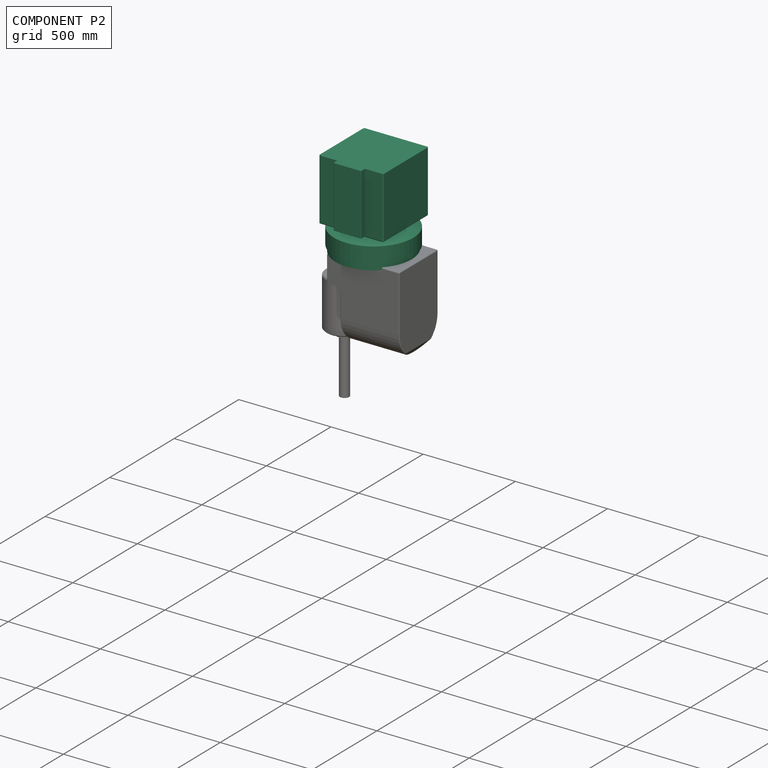
[diagram: component P2 — assembled]
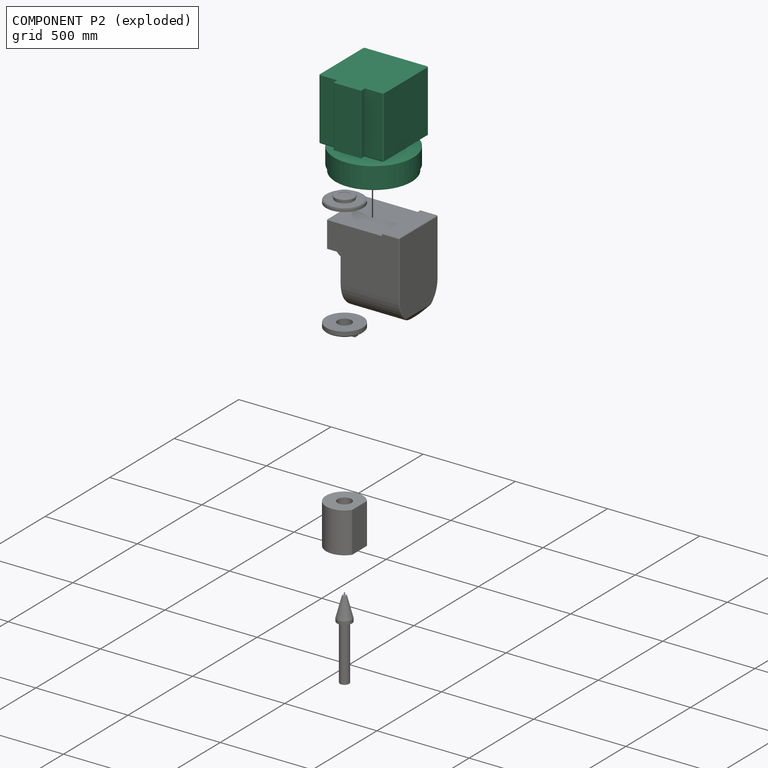
[diagram: component P2 — exploded]
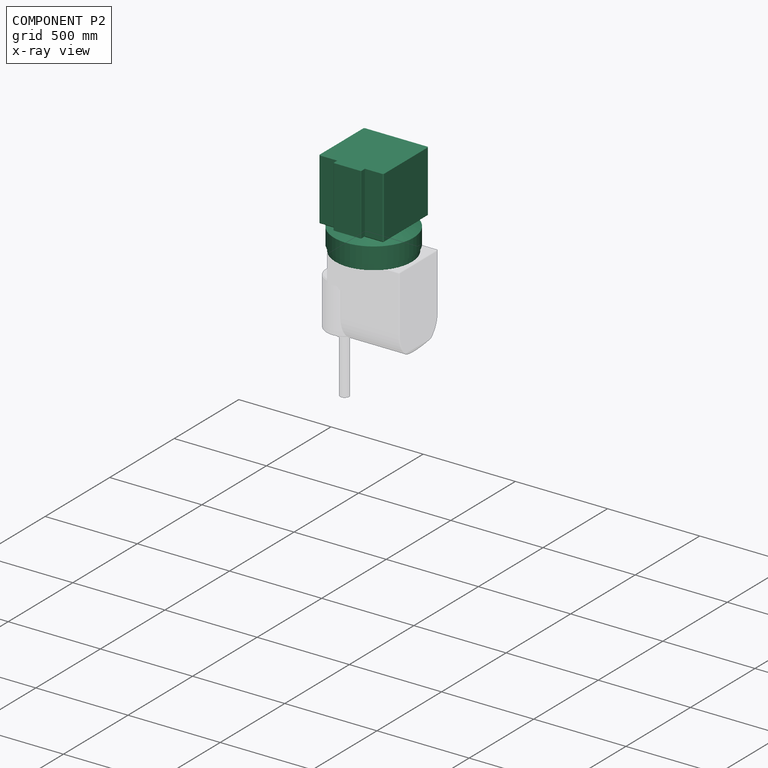
[diagram: component P2 — x-ray view]
COMPONENT P2 — recipe-attached (CADFS 00362089, mesh-verified: the recipe's output STEP matches this component's geometry to below the mesh-comparison resolution (tessellation chordal tolerance ~1.17 mm)).
Held by: FASTENED mate "Fastened 4" to P1.
Construction recipe (FeatureScript — the CAD program that rebuilds this solid; sketch coordinates are in the units given by the * unit suffixes, e.g. mm):

FeatureScript 1511;
import(path : "onshape/std/geometry.fs", version : "1511.0");
import(path : "onshape/std/common.fs", version : "1511.0");
const mm = millimeter;
const VERTEX = EntityType.VERTEX;
const EDGE = EntityType.EDGE;
const FACE = EntityType.FACE;
const BODY = EntityType.BODY;
function v(x, y){return vector(x, y);}
function OD(order){return orderDisambiguation(order);}
function OSD(set){return originalSetDisambiguation(set);}
function TD(topology){return topologyDisambiguation(topology);}
function TDD(query){return trueDependencyDisambiguation(query);}
function sQuery(a, b, c) {return sketchEntityQuery(a, b, c);}

annotation { "Feature Type Name" : "Feature", "Feature Type Description" : "" }
export const myFeature = defineFeature(function(context is Context, id is Id, definition is map)
    precondition{}
    {
        {
            var Q0;
            Q0=qCreatedBy(makeId("Front.planeOp"),FACE);
            var sketch = newSketch(context, id + "F0", { "sketchPlane" : qUnion([Q0])});
            skLineSegment(sketch, "E0", {"start": v(-166.1, -120.82) * mm, "end": v(41.05, -120.82) * mm});
            skPoint(sketch, "E0.startSnap0", {"position": v(224.91, -120.82) * mm});
            skLineSegment(sketch, "E1", {"start": v(-166.1, -89.02) * mm, "end": v(-166.1, -120.82) * mm});
            skLineSegment(sketch, "E2", {"start": v(-166.1, -89.02) * mm, "end": v(41.05, -89.02) * mm});
            skLineSegment(sketch, "E3", {"start": v(-166.1, -89.02) * mm, "end": v(-173.95, -89.02) * mm});
            skLineSegment(sketch, "E4", {"start": v(-173.95, -89.02) * mm, "end": v(-173.95, 0) * mm});
            skLineSegment(sketch, "E5", {"start": v(-173.95, 0) * mm, "end": v(41.05, 0) * mm});
            skLineSegment(sketch, "E6", {"start": v(-173.95, -34.06) * mm, "end": v(41.05, -34.06) * mm});
            skLineSegment(sketch, "E7", {"start": v(-173.95, 0) * mm, "end": v(-91.55, 42.05) * mm});
            skLineSegment(sketch, "E8", {"start": v(-91.55, 42.05) * mm, "end": v(41.05, 42.05) * mm});
            skLineSegment(sketch, "E9", {"start": v(41.05, 171.5) * mm, "end": v(41.05, -194.52) * mm});
            skPoint(sketch, "E10.orphan", {"position": v(249.25, 0) * mm});
            skPoint(sketch, "E11.trimOffspring.end.orphan", {"position": v(249.25, -34.06) * mm});
            skPoint(sketch, "E12.orphan", {"position": v(249.25, -89.02) * mm});
            skPoint(sketch, "E13.start.orphan", {"position": v(224.91, -97.66) * mm});
            skPoint(sketch, "E14.end.orphan", {"position": v(224.91, -143.99) * mm});
            skLineSegment(sketch, "E15.MirrorCS", {"start": v(173.64, 42.05) * mm, "end": v(41.05, 42.05) * mm});
            skLineSegment(sketch, "E16.MirrorCS", {"start": v(256.05, 0) * mm, "end": v(173.64, 42.05) * mm});
            skLineSegment(sketch, "E17.MirrorCS", {"start": v(256.05, -89.02) * mm, "end": v(256.05, 0) * mm});
            skLineSegment(sketch, "E18.MirrorCS", {"start": v(256.05, 0) * mm, "end": v(41.05, 0) * mm});
            skLineSegment(sketch, "E19.MirrorCS", {"start": v(256.05, -34.06) * mm, "end": v(41.05, -34.06) * mm});
            skLineSegment(sketch, "E20.MirrorCS", {"start": v(248.2, -89.02) * mm, "end": v(41.05, -89.02) * mm});
            skLineSegment(sketch, "E21", {"start": v(184.14, -89.02) * mm, "end": v(184.14, -120.82) * mm});
            skLineSegment(sketch, "E22.trimOffspring", {"start": v(184.14, -120.82) * mm, "end": v(41.05, -120.82) * mm});
            skPoint(sketch, "E23.MirrorCS.start.orphan", {"position": v(248.2, -120.82) * mm});
            skPoint(sketch, "E24.MirrorCS.start.orphan", {"position": v(248.2, -89.02) * mm});
            skLineSegment(sketch, "E25", {"start": v(184.14, -89.02) * mm, "end": v(256.05, -89.02) * mm});
            skLineSegment(sketch, "E26", {"start": v(41.05, 171.5) * mm, "end": v(41.05, 367.69) * mm});
            skPoint(sketch, "E27.end.orphan", {"position": v(80.24, 367.69) * mm});
            skLineSegment(sketch, "E28", {"start": v(41.05, 367.69) * mm, "end": v(-133.95, 367.69) * mm});
            skLineSegment(sketch, "E29", {"start": v(-133.95, 367.69) * mm, "end": v(-133.95, 42.05) * mm});
            skLineSegment(sketch, "E30", {"start": v(-91.55, 42.05) * mm, "end": v(-133.95, 42.05) * mm});
            skSolve(sketch);
        }
        {
            var Q0;
            {var subQ2=sQuery(id+"F0.wireOp",EDGE,"E8");Q0=makeQuery(id+"F0.imprint","IMPRINT",FACE,{"disambiguationData":[TD([[makeQuery(id+"F0.imprint","IMPRINT",EDGE,{"derivedFrom":subQ2}),1.0]])]});}
            var Q1;
            Q1=makeQuery(id+"F0.imprint","IMPRINT",FACE,{"disambiguationData":[TD([[makeQuery(id+"F0.imprint","IMPRINT",EDGE,{"derivedFrom":sQuery(id+"F0.wireOp",EDGE,"E7")}),-1.0]])]});
            var Q2;
            {var subQ2=sQuery(id+"F0.wireOp",EDGE,"E6");Q2=makeQuery(id+"F0.imprint","IMPRINT",FACE,{"disambiguationData":[TD([[makeQuery(id+"F0.imprint","IMPRINT",EDGE,{"derivedFrom":subQ2}),1.0]])]});}
            var Q3;
            {var subQ3=sQuery(id+"F0.wireOp",EDGE,"E2");Q3=makeQuery(id+"F0.imprint","IMPRINT",FACE,{"disambiguationData":[TD([[makeQuery(id+"F0.imprint","IMPRINT",EDGE,{"derivedFrom":subQ3}),1.0]])]});}
            var Q4;
            {var subQ0=sQuery(id+"F0.wireOp",EDGE,"E0");Q4=makeQuery(id+"F0.imprint","IMPRINT",FACE,{"disambiguationData":[TD([[makeQuery(id+"F0.imprint","IMPRINT",EDGE,{"derivedFrom":subQ0}),1.0]])]});}
            var Q5;
            Q5=sQuery(id+"F0.wireOp",EDGE,"E9");
            revolve(context, id + "F1", {"entities" : qUnion([Q0, Q1, Q2, Q3, Q4]), "axis" : qUnion([Q5]), "revolveType" : RevolveType.FULL});
        }
        {
            var Q0;
            Q0=makeQuery(id+"F1.opRevolve","SWEPT_FACE",FACE,{"disambiguationData":[OSD([sQuery(id+"F0.wireOp",EDGE,"E28")])]});
            var sketch = newSketch(context, id + "F2", { "sketchPlane" : qUnion([Q0])});
            skLineSegment(sketch, "E31.bottom", {"start": v(-133.95, 175) * mm, "end": v(216.05, 175) * mm});
            skLineSegment(sketch, "E31.top", {"start": v(-133.95, -175) * mm, "end": v(216.05, -175) * mm});
            skLineSegment(sketch, "E31.left", {"start": v(-133.95, 175) * mm, "end": v(-133.95, -175) * mm});
            skLineSegment(sketch, "E31.right", {"start": v(216.05, 175) * mm, "end": v(216.05, -175) * mm});
            skSolve(sketch);
        }
        {
            var Q0;
            {var subQ0=sQuery(id+"F2.wireOp",EDGE,"E31.left");var subQ1=sQuery(id+"F2.wireOp",EDGE,"E31.bottom");var subQ2=makeQuery(id+"F2.imprint","INTERSECT",VERTEX,{"derivedFrom":[subQ1,subQ0]});Q0=makeQuery(id+"F2.imprint","IMPRINT",FACE,{"disambiguationData":[TD([[makeQuery(id+"F2.imprint","IMPRINT",EDGE,{"disambiguationData":[TD([[subQ2,-1.0]])],"derivedFrom":subQ1}),-1.0]])]});}
            var Q1;
            {var subQ0=makeQuery(id+"F1.opRevolve","SWEPT_EDGE",EDGE,{"disambiguationData":[OSD([sQuery(id+"F0.wireOp",EDGE,"E28"),sQuery(id+"F0.wireOp",EDGE,"E29")])]});var subQ1=makeQuery(id+"F2.imprint","INTERSECT",VERTEX,{"derivedFrom":[subQ0,sQuery(id+"F2.wireOp",EDGE,"E31.bottom")]});Q1=makeQuery(id+"F2.imprint","IMPRINT",FACE,{"disambiguationData":[TD([[makeQuery(id+"F2.imprint","IMPRINT",EDGE,{"disambiguationData":[TD([[subQ1,-1.0]])],"derivedFrom":subQ0}),1.0]])]});}
            var Q2;
            {var subQ0=sQuery(id+"F2.wireOp",EDGE,"E31.right");var subQ1=sQuery(id+"F2.wireOp",EDGE,"E31.bottom");var subQ2=makeQuery(id+"F2.imprint","INTERSECT",VERTEX,{"derivedFrom":[subQ1,subQ0]});Q2=makeQuery(id+"F2.imprint","IMPRINT",FACE,{"disambiguationData":[TD([[makeQuery(id+"F2.imprint","IMPRINT",EDGE,{"disambiguationData":[TD([[subQ2,1.0]])],"derivedFrom":subQ1}),-1.0]])]});}
            var Q3;
            {var subQ0=sQuery(id+"F2.wireOp",EDGE,"E31.right");var subQ1=sQuery(id+"F2.wireOp",EDGE,"E31.top");var subQ2=makeQuery(id+"F2.imprint","INTERSECT",VERTEX,{"derivedFrom":[subQ1,subQ0]});Q3=makeQuery(id+"F2.imprint","IMPRINT",FACE,{"disambiguationData":[TD([[makeQuery(id+"F2.imprint","IMPRINT",EDGE,{"disambiguationData":[TD([[subQ2,1.0]])],"derivedFrom":subQ1}),1.0]])]});}
            var Q4;
            {var subQ0=sQuery(id+"F2.wireOp",EDGE,"E31.left");var subQ1=sQuery(id+"F2.wireOp",EDGE,"E31.top");var subQ2=makeQuery(id+"F2.imprint","INTERSECT",VERTEX,{"derivedFrom":[subQ1,subQ0]});Q4=makeQuery(id+"F2.imprint","IMPRINT",FACE,{"disambiguationData":[TD([[makeQuery(id+"F2.imprint","IMPRINT",EDGE,{"disambiguationData":[TD([[subQ2,-1.0]])],"derivedFrom":subQ1}),1.0]])]});}
            extrude(context, id + "F3", {"entities" : qUnion([Q0, Q1, Q2, Q3, Q4]), "operationType" : NewBodyOperationType.ADD, "oppositeDirection" : true, "depth" : 336 * mm});
        }
        {
            var Q0;
            Q0=makeQuery(id+"F3.opExtrude","CAP_EDGE",EDGE,{"disambiguationData":[OSD([sQuery(id+"F2.wireOp",EDGE,"E31.bottom")])],"isStart":false});
            var Q1;
            Q1=makeQuery(id+"F3.opExtrude","CAP_EDGE",EDGE,{"disambiguationData":[OSD([sQuery(id+"F2.wireOp",EDGE,"E31.left")])],"isStart":false});
            var Q2;
            Q2=makeQuery(id+"F3.opExtrude","CAP_EDGE",EDGE,{"disambiguationData":[OSD([sQuery(id+"F2.wireOp",EDGE,"E31.right")])],"isStart":false});
            var Q3;
            Q3=makeQuery(id+"F3.opExtrude","CAP_EDGE",EDGE,{"disambiguationData":[OSD([sQuery(id+"F2.wireOp",EDGE,"E31.top")])],"isStart":false});
            chamfer(context, id + "F4", {"entities" : qUnion([Q0, Q1, Q2, Q3]), "width" : 5 * mm, "tangentPropagation" : true});
        }
        {
            var Q0;
            Q0=makeQuery(id+"F3.opExtrude","SWEPT_EDGE",EDGE,{"disambiguationData":[OSD([sQuery(id+"F2.wireOp",EDGE,"E31.bottom"),sQuery(id+"F2.wireOp",EDGE,"E31.right")])]});
            var Q1;
            Q1=makeQuery(id+"F3.opExtrude","SWEPT_EDGE",EDGE,{"disambiguationData":[OSD([sQuery(id+"F2.wireOp",EDGE,"E31.top"),sQuery(id+"F2.wireOp",EDGE,"E31.right")])]});
            var Q2;
            Q2=makeQuery(id+"F3.opExtrude","SWEPT_EDGE",EDGE,{"disambiguationData":[OSD([sQuery(id+"F2.wireOp",EDGE,"E31.bottom"),sQuery(id+"F2.wireOp",EDGE,"E31.left")])]});
            var Q3;
            Q3=makeQuery(id+"F3.opExtrude","SWEPT_EDGE",EDGE,{"disambiguationData":[OSD([sQuery(id+"F2.wireOp",EDGE,"E31.top"),sQuery(id+"F2.wireOp",EDGE,"E31.left")])]});
            chamfer(context, id + "F5", {"entities" : qUnion([Q0, Q1, Q2, Q3]), "width" : 5 * mm, "tangentPropagation" : true});
        }
        {
            var Q0;
            Q0=makeQuery(id+"F3.opExtrude","SWEPT_FACE",FACE,{"disambiguationData":[OSD([sQuery(id+"F2.wireOp",EDGE,"E31.top")])]});
            var sketch = newSketch(context, id + "F6", { "sketchPlane" : qUnion([Q0])});
            skLineSegment(sketch, "E32", {"start": v(-33.95, 36.69) * mm, "end": v(-33.95, 367.69) * mm});
            skLineSegment(sketch, "E33", {"start": v(116.05, 367.69) * mm, "end": v(116.05, 36.69) * mm});
            skLineSegment(sketch, "E34", {"start": v(-33.95, 36.69) * mm, "end": v(116.05, 36.69) * mm});
            skLineSegment(sketch, "E35", {"start": v(-33.95, 367.69) * mm, "end": v(116.05, 367.69) * mm});
            skSolve(sketch);
        }
        {
            var Q0;
            Q0=makeQuery(id+"F6.imprint","IMPRINT",FACE,{"disambiguationData":[TD([[makeQuery(id+"F6.imprint","IMPRINT",EDGE,{"derivedFrom":sQuery(id+"F6.wireOp",EDGE,"E32")}),-1.0]])]});
            extrude(context, id + "F7", {"entities" : qUnion([Q0]), "operationType" : NewBodyOperationType.ADD, "depth" : 30 * mm});
        }
        {
            var Q0;
            Q0=makeQuery(id+"F7.opExtrude","CAP_EDGE",EDGE,{"disambiguationData":[OSD([sQuery(id+"F6.wireOp",EDGE,"E32")])],"isStart":false});
            var Q1;
            Q1=makeQuery(id+"F7.opExtrude","CAP_EDGE",EDGE,{"disambiguationData":[OSD([sQuery(id+"F6.wireOp",EDGE,"E33")])],"isStart":false});
            chamfer(context, id + "F8", {"entities" : qUnion([Q0, Q1]), "width" : 2 * mm, "tangentPropagation" : true});
        }
    });
PROVENANCE & LICENSES
Assembly (occurrences, transforms, mates, per-part STEP geometry): AutoMate dataset, Zenodo record 7776208, CC0.
Construction recipes: CADFS (HuggingFace VladPyatov/CADFS, CC-BY-4.0, layered over the ABC dataset), FeatureScript reconstruction programs keyed by ABC model id.
Join: ABC meta listings map ABC model id -> Onshape documentId; within a shared document, parts are matched by geometric signature (bounding-box dims + volume at 0.1% relative tolerance, exact B-rep face/solid counts).
Verification: 5 of this assembly's 6 components carry a recipe attachment, and every attachment is mesh-verified: the CADFS STEP and the AutoMate member STEP were compared as meshes in their shared local frame (symmetric sampled-point-to-mesh distance); worst across the 5 attachments: below the mesh-comparison resolution (tessellation chordal tolerance ~1.17 mm) on a 780 mm part.
Renders: orthographic iso camera (az 35 / el 25); the floor grid conveys scale (grid pitch printed in each image; no ruler). In the exploded view each component is displaced by its stored offset vector: the offsets alone carry the explosion direction (mate normal/axis signs are not orientation cues and do not encode it), and separation distances are assigned per mate-chain, not proportionally to assembly-order depth.
